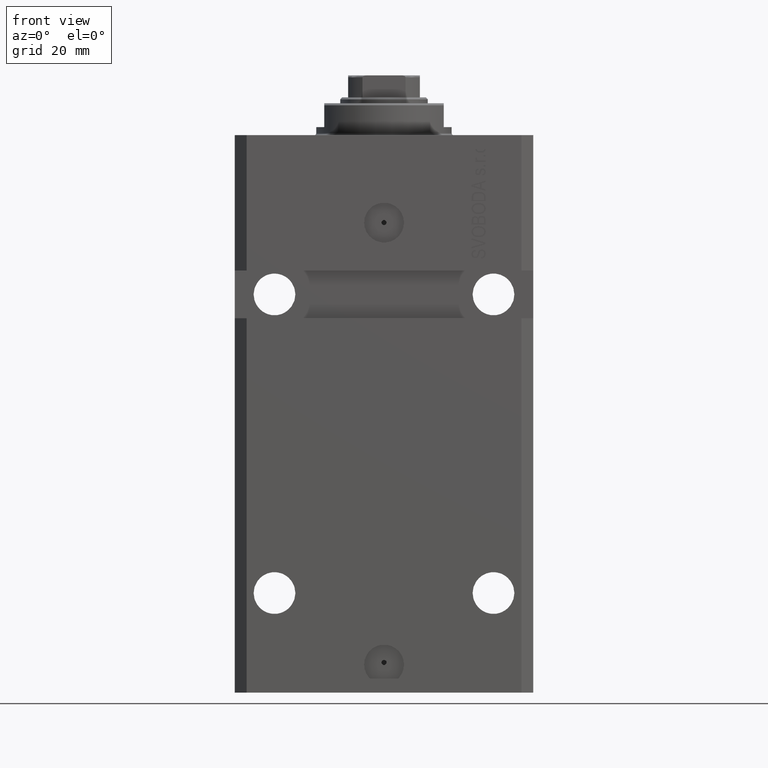
[diagram: clean part render]
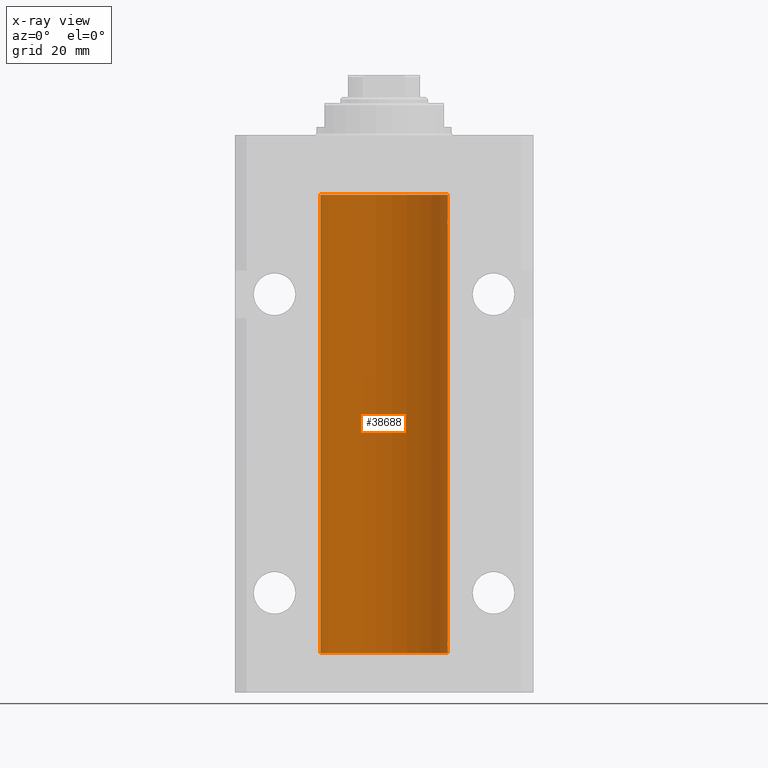
[diagram: x-ray — body ghosted, one internal face saturated and labeled with its STEP entity id]
A machine part, front view, then the same camera in x-ray: the body is ghosted and one INTERNAL B-rep face — a face not visible from any outside direction — is saturated and labeled: STEP entity #38688.
In plain terms, the highlighted cylindrical surface (partial cylindrical patch) has radius 16 mm, axis along (0, 0, 1).
Its self-contained STEP definition (entity closure, byte-faithful):
#1248 = CARTESIAN_POINT ( 'NONE',  ( 15.98778830858103817, 0.6249999999997200018, -127.9184788504620940 ) ) ;
#1276 = CARTESIAN_POINT ( 'NONE',  ( 15.98778830858070954, 0.6250000000080528917, -127.9999999999991473 ) ) ;
#1478 = CARTESIAN_POINT ( 'NONE',  ( 15.98844460043492077, 0.6087869699337552509, -127.8365745496755608 ) ) ;
#3001 = DIRECTION ( 'NONE',  ( 1.000000000000000000, 0.000000000000000000, 0.000000000000000000 ) ) ;
#3155 = CARTESIAN_POINT ( 'NONE',  ( 15.98778830858104172, 0.6249999999996183053, -21.91847885046212951 ) ) ;
#3261 = CARTESIAN_POINT ( 'NONE',  ( 0.000000000000000000, 0.000000000000000000, -15.00000000000000000 ) ) ;
#3346 = CARTESIAN_POINT ( 'NONE',  ( 16.00000000000013145, 3.665532680419208314E-13, -21.37499999999658229 ) ) ;
#3625 = CARTESIAN_POINT ( 'NONE',  ( 15.98778830858070954, 0.6250000000079481977, -21.99999999999914735 ) ) ;
#3901 = CARTESIAN_POINT ( 'NONE',  ( 15.99707608081894783, 0.3151028052310348992, -128.5459417069773451 ) ) ;
#4141 = EDGE_CURVE ( 'NONE', #16218, #5136, #33890, .T. ) ;
#4495 = EDGE_CURVE ( 'NONE', #43451, #27575, #23459, .T. ) ;
#5058 = CARTESIAN_POINT ( 'NONE',  ( 16.00000000000013145, 3.665533114689029904E-13, -127.3749999999965752 ) ) ;
#5136 = VERTEX_POINT ( 'NONE', #1276 ) ;
#5297 = CARTESIAN_POINT ( 'NONE',  ( -16.00000000000000000, 1.959434878635765131E-15, -130.0999999999999943 ) ) ;
#5400 = EDGE_CURVE ( 'NONE', #41077, #9425, #42985, .T. ) ;
#5678 = ORIENTED_EDGE ( 'NONE', *, *, #26740, .T. ) ;
#6163 = CARTESIAN_POINT ( 'NONE',  ( 16.00000000000000000, 0.000000000000000000, -130.0999999999999943 ) ) ;
#6197 = DIRECTION ( 'NONE',  ( -0.000000000000000000, -0.000000000000000000, 1.000000000000000000 ) ) ;
#6402 = VECTOR ( 'NONE', #27094, 1000.000000000000000 ) ;
#6589 = CYLINDRICAL_SURFACE ( 'NONE', #37692, 16.00000000000000000 ) ;
#6668 = DIRECTION ( 'NONE',  ( 0.000000000000000000, 0.000000000000000000, 1.000000000000000000 ) ) ;
#7267 = CARTESIAN_POINT ( 'NONE',  ( 16.00000000000000355, 0.08261762387943334673, -128.6250000000000000 ) ) ;
#7375 = CARTESIAN_POINT ( 'NONE',  ( 16.00000000000000000, 2.199125140786256469E-15, -128.6250000000000284 ) ) ;
#7699 = CARTESIAN_POINT ( 'NONE',  ( 15.99228275317787151, 0.5002975944204681724, -127.6164201457017668 ) ) ;
#7721 = AXIS2_PLACEMENT_3D ( 'NONE', #21041, #6668, #39717 ) ;
#8017 = EDGE_CURVE ( 'NONE', #5136, #43451, #27344, .T. ) ;
#8402 = CARTESIAN_POINT ( 'NONE',  ( 15.99999999999998934, 0.1631343969470183675, -127.3750000000001847 ) ) ;
#8657 = CARTESIAN_POINT ( 'NONE',  ( 16.00000000000013145, 3.665533114689029904E-13, -127.3749999999965752 ) ) ;
#8787 = CARTESIAN_POINT ( 'NONE',  ( 16.00000000000000000, -7.378931128587136680E-16, -22.62500000000000000 ) ) ;
#9425 = VERTEX_POINT ( 'NONE', #3346 ) ;
#9712 = ORIENTED_EDGE ( 'NONE', *, *, #33101, .T. ) ;
#10247 = CARTESIAN_POINT ( 'NONE',  ( 15.99548458234361803, 0.3844468804815583396, -22.49947786696350960 ) ) ;
#10847 = ORIENTED_EDGE ( 'NONE', *, *, #27359, .T. ) ;
#11089 = CARTESIAN_POINT ( 'NONE',  ( 15.98778830858070954, 0.6250000000080528917, -127.9999999999991473 ) ) ;
#11127 = CARTESIAN_POINT ( 'NONE',  ( 16.00000000000000000, 0.000000000000000000, -130.0999999999999943 ) ) ;
#11529 = CARTESIAN_POINT ( 'NONE',  ( 15.99070695999103542, 0.5461439696927218312, -127.6852680236405035 ) ) ;
#11560 = VERTEX_POINT ( 'NONE', #15727 ) ;
#12063 = LINE ( 'NONE', #11127, #45168 ) ;
#12186 = EDGE_CURVE ( 'NONE', #17074, #11560, #22997, .T. ) ;
#12744 = CARTESIAN_POINT ( 'NONE',  ( 16.00000000000000000, 0.000000000000000000, -15.00000000000000000 ) ) ;
#12938 = VERTEX_POINT ( 'NONE', #12744 ) ;
#13845 = CARTESIAN_POINT ( 'NONE',  ( 15.99934183755191341, 0.1636877470526788836, -22.60872690654067796 ) ) ;
#15727 = CARTESIAN_POINT ( 'NONE',  ( -16.00000000000000000, 1.959434878635765131E-15, -130.0999999999999943 ) ) ;
#16218 = VERTEX_POINT ( 'NONE', #7375 ) ;
#16410 = EDGE_CURVE ( 'NONE', #12938, #40674, #46747, .T. ) ;
#17074 = VERTEX_POINT ( 'NONE', #6163 ) ;
#17745 = CARTESIAN_POINT ( 'NONE',  ( 15.99711856062700122, 0.3252985083513916242, -21.44140297987714661 ) ) ;
#18303 = DIRECTION ( 'NONE',  ( -0.000000000000000000, -0.000000000000000000, 1.000000000000000000 ) ) ;
#19698 = VECTOR ( 'NONE', #6197, 1000.000000000000000 ) ;
#20384 = LINE ( 'NONE', #5297, #6402 ) ;
#20980 = DIRECTION ( 'NONE',  ( 1.000000000000000000, 0.000000000000000000, 0.000000000000000000 ) ) ;
#21041 = CARTESIAN_POINT ( 'NONE',  ( 0.000000000000000000, 0.000000000000000000, -130.0999999999999943 ) ) ;
#21261 = CARTESIAN_POINT ( 'NONE',  ( 15.98778830858070954, 0.6250000000079481977, -21.99999999999914735 ) ) ;
#21335 = CARTESIAN_POINT ( 'NONE',  ( 15.99070695999104252, 0.5461439696926362330, -21.68526802364053552 ) ) ;
#21567 = CARTESIAN_POINT ( 'NONE',  ( 15.98844460043492077, 0.6087869699336542206, -21.83657454967558564 ) ) ;
#21864 = CARTESIAN_POINT ( 'NONE',  ( 15.99070366873610993, 0.5574063959867617823, -128.3263943683755315 ) ) ;
#22161 = EDGE_LOOP ( 'NONE', ( #31767, #25872, #5678, #38373, #31361, #43930, #10847, #32526, #9712, #45430 ) ) ;
#22328 = CARTESIAN_POINT ( 'NONE',  ( 15.99548458234361092, 0.3844468804816240093, -128.4994778669635025 ) ) ;
#22997 = CIRCLE ( 'NONE', #7721, 16.00000000000000000 ) ;
#23136 = LINE ( 'NONE', #41597, #40206 ) ;
#23459 = LINE ( 'NONE', #24164, #19698 ) ;
#24164 = CARTESIAN_POINT ( 'NONE',  ( 16.00000000000000000, 0.000000000000000000, -130.0999999999999943 ) ) ;
#24321 = DIRECTION ( 'NONE',  ( 0.000000000000000000, 0.000000000000000000, 1.000000000000000000 ) ) ;
#25242 = FACE_OUTER_BOUND ( 'NONE', #22161, .T. ) ;
#25872 = ORIENTED_EDGE ( 'NONE', *, *, #12186, .F. ) ;
#26372 = CARTESIAN_POINT ( 'NONE',  ( 15.99711856062700477, 0.3252985083514177145, -127.4414029798771395 ) ) ;
#26740 = EDGE_CURVE ( 'NONE', #17074, #16218, #23136, .T. ) ;
#27094 = DIRECTION ( 'NONE',  ( -0.000000000000000000, -0.000000000000000000, 1.000000000000000000 ) ) ;
#27344 = B_SPLINE_CURVE_WITH_KNOTS ( 'NONE', 3,
 ( #40756, #1248, #1478, #11529, #7699, #26372, #8402, #5058 ),
 .UNSPECIFIED., .F., .F.,
 ( 4, 2, 2, 4 ),
 ( 0.0009773326288700927462, 0.001221554802188709252, 0.001465776975507325757, 0.001954221322144558768 ),
 .UNSPECIFIED. ) ;
#27359 = EDGE_CURVE ( 'NONE', #27575, #41077, #33697, .T. ) ;
#27575 = VERTEX_POINT ( 'NONE', #8787 ) ;
#28441 = CARTESIAN_POINT ( 'NONE',  ( 16.00000000000000000, -7.378931128587136680E-16, -22.62500000000000000 ) ) ;
#28797 = CARTESIAN_POINT ( 'NONE',  ( -16.00000000000000000, 1.959434878635765131E-15, -15.00000000000000000 ) ) ;
#31361 = ORIENTED_EDGE ( 'NONE', *, *, #8017, .T. ) ;
#31767 = ORIENTED_EDGE ( 'NONE', *, *, #40813, .F. ) ;
#32187 = CARTESIAN_POINT ( 'NONE',  ( 0.000000000000000000, 0.000000000000000000, -130.0999999999999943 ) ) ;
#32507 = CARTESIAN_POINT ( 'NONE',  ( 15.99070366873610638, 0.5574063959866681905, -22.32639436837549596 ) ) ;
#32526 = ORIENTED_EDGE ( 'NONE', *, *, #5400, .T. ) ;
#33099 = CARTESIAN_POINT ( 'NONE',  ( 15.99934183755190986, 0.1636877470527098033, -128.6087269065407384 ) ) ;
#33101 = EDGE_CURVE ( 'NONE', #9425, #12938, #12063, .T. ) ;
#33697 = B_SPLINE_CURVE_WITH_KNOTS ( 'NONE', 3,
 ( #28441, #46210, #13845, #43320, #10247, #32507, #39481, #21261 ),
 .UNSPECIFIED., .F., .F.,
 ( 4, 2, 2, 4 ),
 ( 1.864948331951035013E-18, 0.0002443331572174913110, 0.0004886663144349807789, 0.0009773326288699671956 ),
 .UNSPECIFIED. ) ;
#33890 = B_SPLINE_CURVE_WITH_KNOTS ( 'NONE', 3,
 ( #36709, #7267, #33099, #3901, #22328, #21864, #39836, #11089 ),
 .UNSPECIFIED., .F., .F.,
 ( 4, 2, 2, 4 ),
 ( 2.137109855960538111E-18, 0.0002443331572175100135, 0.0004886663144350179670, 0.0009773326288700927462 ),
 .UNSPECIFIED. ) ;
#34877 = CARTESIAN_POINT ( 'NONE',  ( 15.98778830858070954, 0.6250000000079481977, -21.99999999999914735 ) ) ;
#36709 = CARTESIAN_POINT ( 'NONE',  ( 16.00000000000000000, 2.199125140786256469E-15, -128.6250000000000284 ) ) ;
#36746 = DIRECTION ( 'NONE',  ( -0.000000000000000000, -0.000000000000000000, 1.000000000000000000 ) ) ;
#37692 = AXIS2_PLACEMENT_3D ( 'NONE', #32187, #18303, #3001 ) ;
#38373 = ORIENTED_EDGE ( 'NONE', *, *, #4141, .T. ) ;
#38688 = ADVANCED_FACE ( 'NONE', ( #25242 ), #6589, .F. ) ;
#39481 = CARTESIAN_POINT ( 'NONE',  ( 15.98778830858101152, 0.6250000000001202372, -22.16311639173018477 ) ) ;
#39552 = CARTESIAN_POINT ( 'NONE',  ( 15.99228275317787507, 0.5002975944204003378, -21.61642014570181303 ) ) ;
#39717 = DIRECTION ( 'NONE',  ( 1.000000000000000000, 0.000000000000000000, 0.000000000000000000 ) ) ;
#39836 = CARTESIAN_POINT ( 'NONE',  ( 15.98778830858101152, 0.6250000000002303713, -128.1631163917302274 ) ) ;
#40206 = VECTOR ( 'NONE', #44730, 1000.000000000000000 ) ;
#40267 = CARTESIAN_POINT ( 'NONE',  ( 16.00000000000013145, 3.665532680419208314E-13, -21.37499999999658229 ) ) ;
#40674 = VERTEX_POINT ( 'NONE', #28797 ) ;
#40756 = CARTESIAN_POINT ( 'NONE',  ( 15.98778830858070954, 0.6250000000080528917, -127.9999999999991473 ) ) ;
#40813 = EDGE_CURVE ( 'NONE', #11560, #40674, #20384, .T. ) ;
#41077 = VERTEX_POINT ( 'NONE', #34877 ) ;
#41597 = CARTESIAN_POINT ( 'NONE',  ( 16.00000000000000000, 0.000000000000000000, -130.0999999999999943 ) ) ;
#42985 = B_SPLINE_CURVE_WITH_KNOTS ( 'NONE', 3,
 ( #3625, #3155, #21567, #21335, #39552, #17745, #44330, #40267 ),
 .UNSPECIFIED., .F., .F.,
 ( 4, 2, 2, 4 ),
 ( 0.0009773326288699671956, 0.001221554802188560499, 0.001465776975507153803, 0.001954221322144333254 ),
 .UNSPECIFIED. ) ;
#43320 = CARTESIAN_POINT ( 'NONE',  ( 15.99707608081895494, 0.3151028052309814975, -22.54594170697728117 ) ) ;
#43451 = VERTEX_POINT ( 'NONE', #8657 ) ;
#43930 = ORIENTED_EDGE ( 'NONE', *, *, #4495, .T. ) ;
#44330 = CARTESIAN_POINT ( 'NONE',  ( 15.99999999999999289, 0.1631343969470014366, -21.37500000000020606 ) ) ;
#44730 = DIRECTION ( 'NONE',  ( -0.000000000000000000, -0.000000000000000000, 1.000000000000000000 ) ) ;
#45168 = VECTOR ( 'NONE', #36746, 1000.000000000000000 ) ;
#45430 = ORIENTED_EDGE ( 'NONE', *, *, #16410, .T. ) ;
#45968 = AXIS2_PLACEMENT_3D ( 'NONE', #3261, #24321, #20980 ) ;
#46210 = CARTESIAN_POINT ( 'NONE',  ( 16.00000000000000000, 0.08261762387942135633, -22.62499999999996803 ) ) ;
#46747 = CIRCLE ( 'NONE', #45968, 16.00000000000000000 ) ;